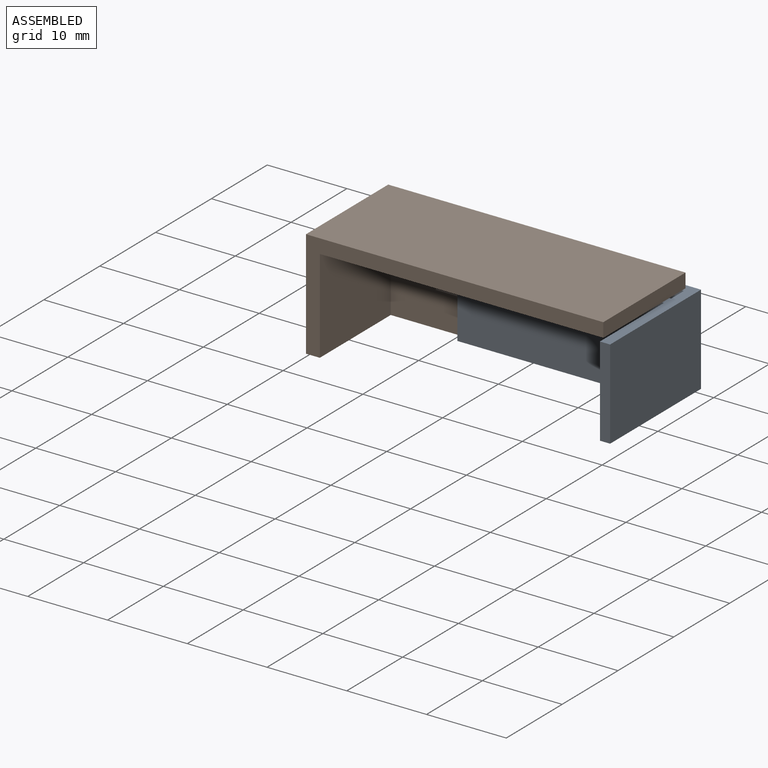
[diagram: assembled view]
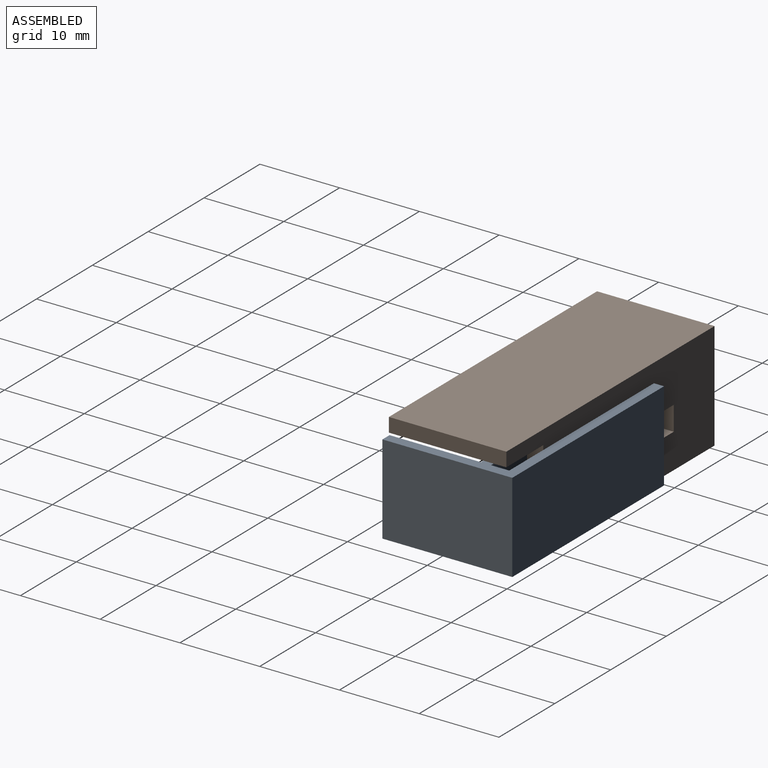
[diagram: assembled view, second angle]
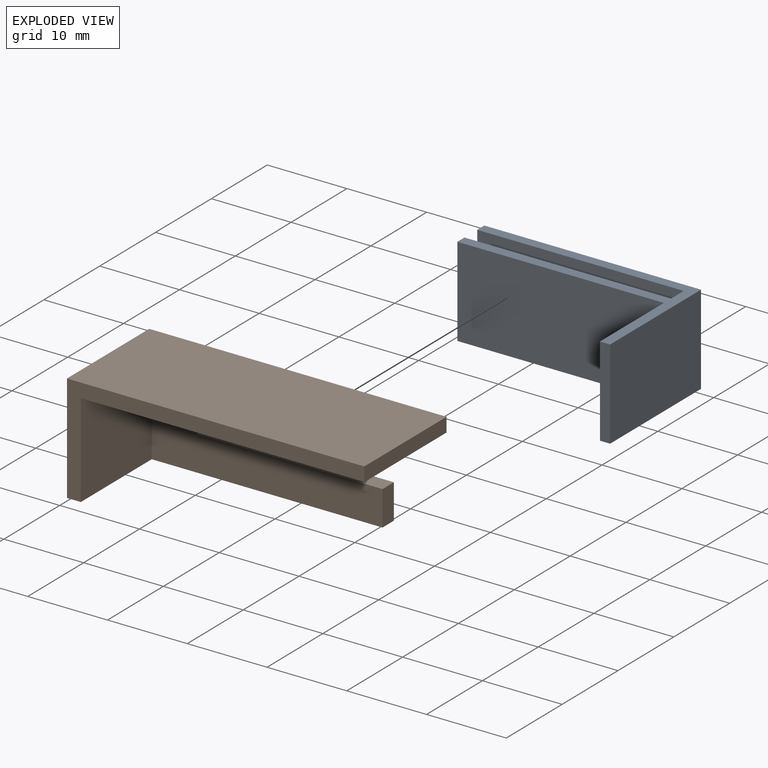
[diagram: exploded view]
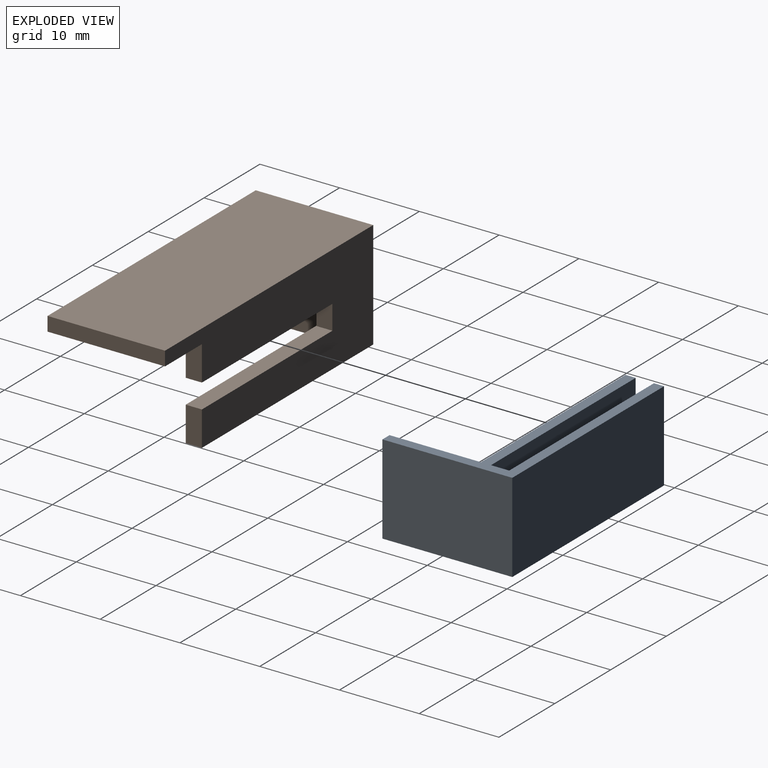
[diagram: exploded view, second angle]
ASSEMBLY  parts=2 mates=2
PART A: 16 faces, bbox 27.2x16.3x11.2 mm
  f0: plane 27.18x16.28mm, normal (0,0,-1), area 86.5mm2, adj f1,f3,f4,f9,f10,f11,f13,f14
  f1: plane 25.91x4.37mm, normal (0,1,0), area 113.2mm2, adj f0,f2,f10,f15
  f2: plane 25.91x2.29mm, normal (0,0,-1), area 59.2mm2, adj f1,f3,f10,f15
  f3: plane 25.91x4.37mm, normal (0,-1,0), area 113.2mm2, adj f0,f2,f10,f15
  f4: plane 27.18x11.24mm, normal (0,1,0), area 305.5mm2, adj f0,f8,f13,f15
  f5: plane 25.91x4.11mm, normal (0,-1,0), area 106.6mm2, adj f6,f8,f12,f15
  f6: plane 25.91x2.29mm, normal (0,0,1), area 59.2mm2, adj f5,f7,f12,f15
  f7: plane 25.91x4.11mm, normal (0,1,0), area 106.6mm2, adj f6,f8,f12,f15
  f8: plane 27.18x16.28mm, normal (0,0,1), area 86.5mm2, adj f4,f5,f7,f9,f11,f12,f13,f14
  f9: plane 25.91x11.24mm, normal (0,-1,0), area 291.2mm2, adj f0,f8,f11,f15
  f10: plane 4.37x2.29mm, normal (-1,0,0), area 10mm2, adj f0,f1,f2,f3
  f11: plane 11.46x11.24mm, normal (-1,0,0), area 128.8mm2, adj f0,f8,f9,f14
  f12: plane 4.12x2.29mm, normal (-1,0,0), area 9.4mm2, adj f5,f6,f7,f8
  f13: plane 16.28x11.24mm, normal (1,0,0), area 183mm2, adj f0,f4,f8,f14
  f14: plane 11.24x1.27mm, normal (0,-1,0), area 14.3mm2, adj f0,f8,f11,f13
  f15: plane 11.24x4.83mm, normal (-1,0,0), area 34.9mm2, adj f0,f1,f2,f3,f4,f5,f6,f7
PART B: 14 faces, bbox 37.3x14.7x13.5 mm
  f0: plane 37.28x13.54mm, normal (0,-1,0), area 355.9mm2, adj f1,f2,f4,f5,f6,f7,f10,f11
  f1: plane 37.28x14.73mm, normal (0,0,-1), area 549.2mm2, adj f0,f7,f9,f13
  f2: plane 35.54x14.73mm, normal (0,0,1), area 464.8mm2, adj f0,f3,f8,f9,f12,f13
  f3: plane 28.94x11.76mm, normal (0,1,0), area 269.1mm2, adj f2,f4,f5,f6,f8,f10,f11,f12
  f4: plane 30.68x14.73mm, normal (0,0,1), area 84.4mm2, adj f0,f3,f7,f8,f9,f11
  f5: plane 23.37x2.03mm, normal (0,0,1), area 47.5mm2, adj f0,f3,f10,f12
  f6: plane 23.37x2.03mm, normal (0,0,-1), area 47.5mm2, adj f0,f3,f10,f11
  f7: plane 14.73x13.54mm, normal (-1,0,0), area 199.5mm2, adj f0,f1,f4,f9
  f8: plane 12.7x11.76mm, normal (1,0,0), area 149.4mm2, adj f2,f3,f4,f9
  f9: plane 37.28x13.54mm, normal (0,1,0), area 86.7mm2, adj f1,f2,f4,f7,f8,f13
  f10: plane 3.05x2.03mm, normal (1,0,0), area 6.2mm2, adj f0,f3,f5,f6
  f11: plane 4.36x2.03mm, normal (1,0,0), area 8.9mm2, adj f0,f3,f4,f6
  f12: plane 4.36x2.03mm, normal (1,0,0), area 8.9mm2, adj f0,f2,f3,f5
  f13: plane 14.73x1.78mm, normal (1,0,0), area 26.2mm2, adj f0,f1,f2,f9
PLACE A t=(17.47,26.14,-6.42)mm
PLACE B rot(axis=(1,0,0),180deg) t=(20.38,26.26,5.26)mm
MATE parallel B.f3 <-> A.f5  axis (0,-1,0) through (36.59,26.26,-6.5)mm
MATE parallel A.f6 <-> B.f5  axis (0,0,1) through (44.39,27.29,0.7)mm
